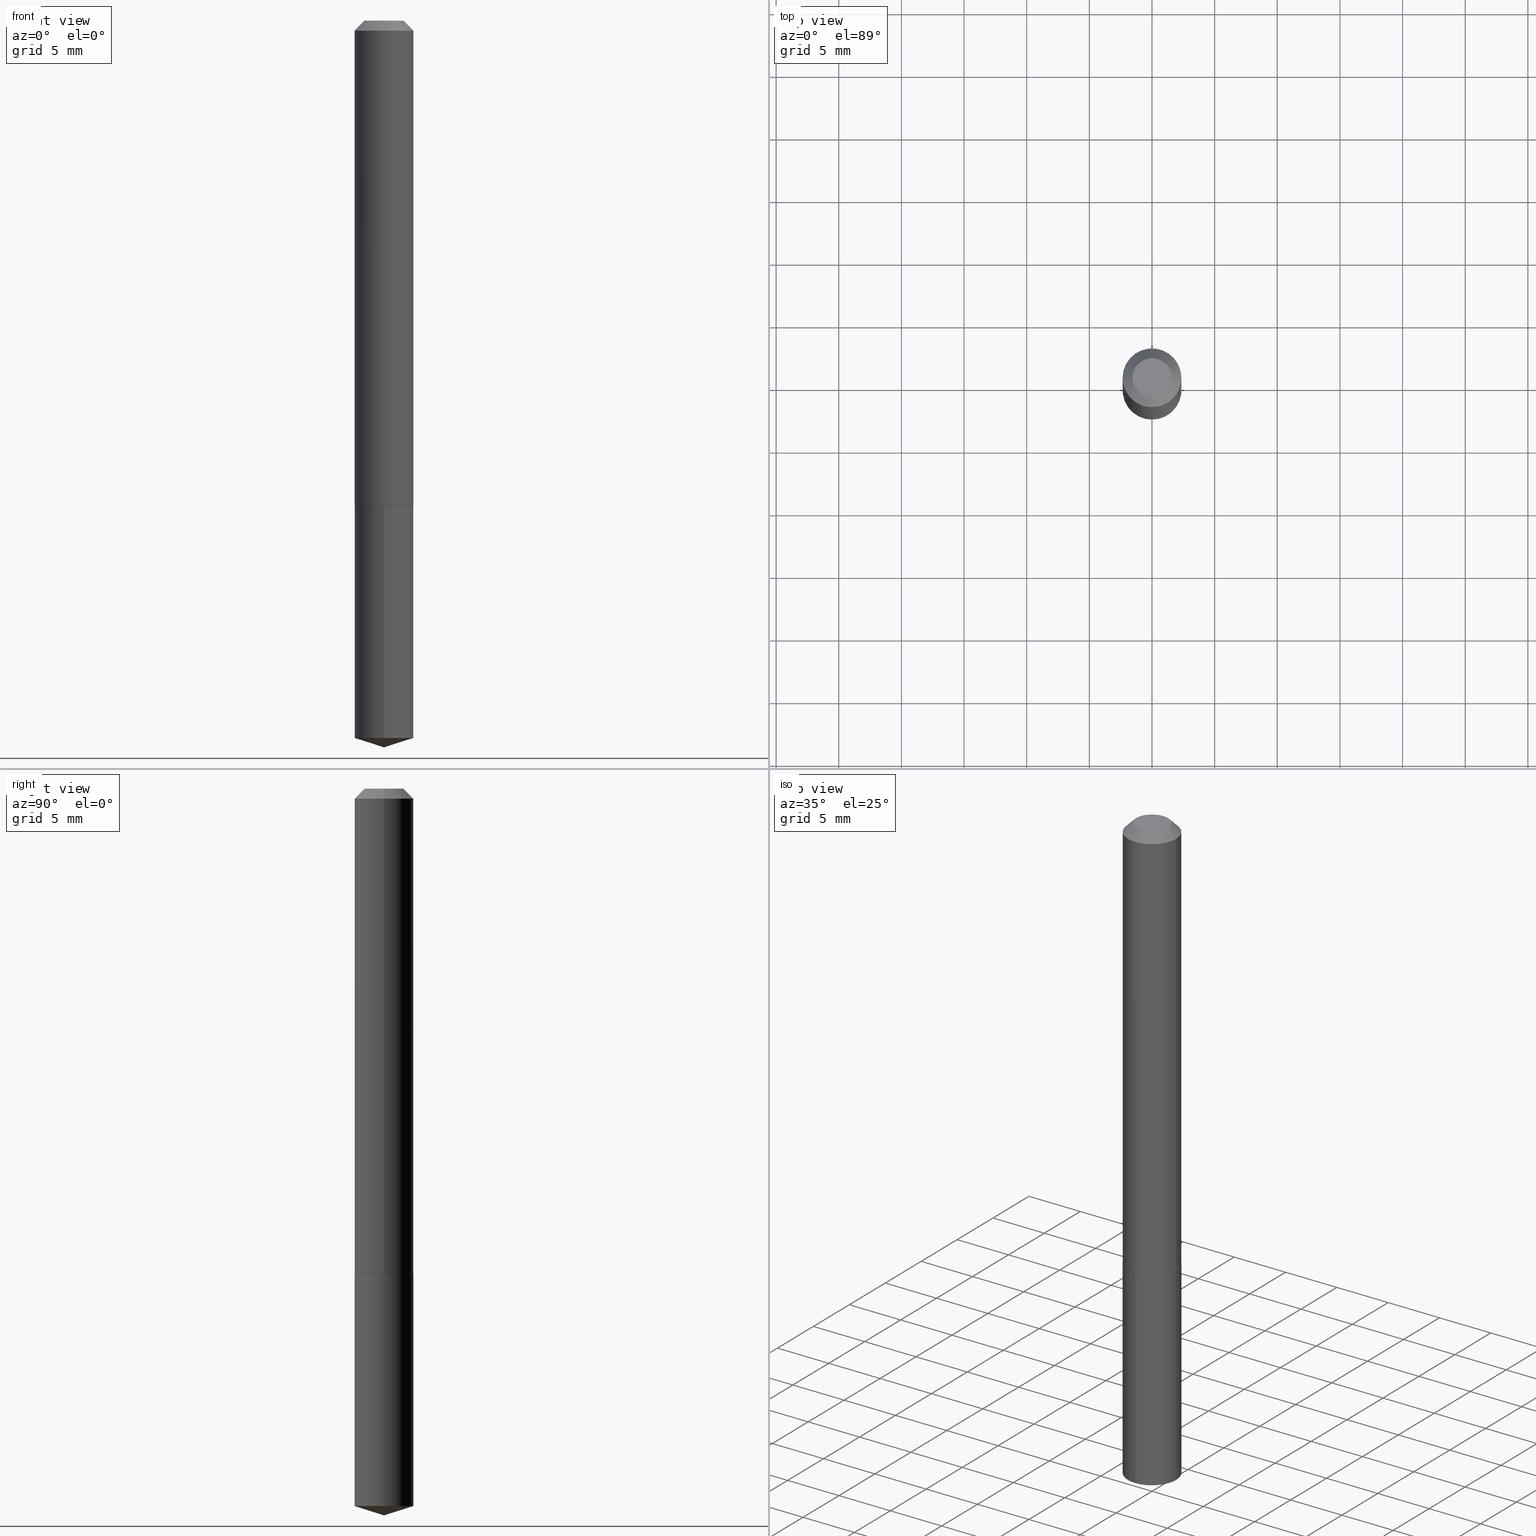
[diagram: canonical four-view strip — front | top / right | iso, engineering-drawing reading convention]
A machine part, canonical four-view strip (front | top / right | iso — engineering-drawing reading convention). The complete STEP part file that produces these views, byte-faithful:
ISO-10303-21;
HEADER;
FILE_DESCRIPTION (( 'STEP AP203' ),
    '1' );
FILE_NAME ('62105.STEP',
    '2024-04-23T06:02:27',
    ( '' ),
    ( '' ),
    'SwSTEP 2.0',
    'SolidWorks 2023',
    '' );
FILE_SCHEMA (( 'CONFIG_CONTROL_DESIGN' ));
ENDSEC;

DATA;
#1 = DIRECTION ( 'NONE',  ( -2.445468806185136597E-29, 3.491481338843145583E-15, 1.000000000000000000 ) ) ;
#2 = DIRECTION ( 'NONE',  ( -0.7071067811865474617, 7.493145998870352582E-15, 0.7071067811865474617 ) ) ;
#3 = AXIS2_PLACEMENT_3D ( 'NONE', #269, #19, #258 ) ;
#4 = AXIS2_PLACEMENT_3D ( 'NONE', #343, #64, #278 ) ;
#5 = DIRECTION ( 'NONE',  ( 1.000000000000000000, -6.982962677686267499E-15, 4.876176775795936353E-29 ) ) ;
#6 = DIRECTION ( 'NONE',  ( -6.982962677686265922E-15, -1.000000000000000000, 2.953349182339743999E-15 ) ) ;
#7 = FACE_OUTER_BOUND ( 'NONE', #244, .T. ) ;
#8 = CIRCLE ( 'NONE', #311, 0.09250000000000002665 ) ;
#9 = CARTESIAN_POINT ( 'NONE',  ( 0.09200000000000027600, -5.962053534208555646E-15, -1.523600000000000065 ) ) ;
#10 = DIRECTION ( 'NONE',  ( -2.432666461366210760E-29, 3.509815025288062434E-15, 1.000000000000000000 ) ) ;
#11 = ORIENTED_EDGE ( 'NONE', *, *, #201, .T. ) ;
#12 = APPLICATION_PROTOCOL_DEFINITION ( 'international standard', 'config_control_design', 1994, #249 ) ;
#13 = LINE ( 'NONE', #382, #203 ) ;
#14 = APPROVAL_STATUS ( 'not_yet_approved' ) ;
#15 = DIRECTION ( 'NONE',  ( 1.000000000000000000, -6.982962677686266711E-15, 0.000000000000000000 ) ) ;
#16 = DIRECTION ( 'NONE',  ( -6.982962677686265133E-15, -1.000000000000000000, 2.953349182339743210E-15 ) ) ;
#17 = ORIENTED_EDGE ( 'NONE', *, *, #334, .T. ) ;
#18 = PRODUCT_DEFINITION_FORMATION_WITH_SPECIFIED_SOURCE ( 'ANY', '', #335, .NOT_KNOWN. ) ;
#19 = DIRECTION ( 'NONE',  ( -2.445468806185136597E-29, 3.491481338843145583E-15, 1.000000000000000000 ) ) ;
#20 = ORIENTED_EDGE ( 'NONE', *, *, #384, .F. ) ;
#21 = ORIENTED_EDGE ( 'NONE', *, *, #79, .T. ) ;
#22 = AXIS2_PLACEMENT_3D ( 'NONE', #188, #354, #314 ) ;
#23 = CC_DESIGN_DATE_AND_TIME_ASSIGNMENT ( #150, #126, ( #276 ) ) ;
#24 = CIRCLE ( 'NONE', #299, 0.09249999999999999889 ) ;
#25 = FACE_OUTER_BOUND ( 'NONE', #155, .T. ) ;
#26 = DIRECTION ( 'NONE',  ( 1.000000000000000000, -6.982962677686269866E-15, 0.000000000000000000 ) ) ;
#27 = DIRECTION ( 'NONE',  ( -2.432666461366210760E-29, 3.509815025288062434E-15, 1.000000000000000000 ) ) ;
#28 = CARTESIAN_POINT ( 'NONE',  ( 3.725916273103674139E-29, -5.319620967861417089E-15, -1.523600000000000065 ) ) ;
#29 = FACE_OUTER_BOUND ( 'NONE', #274, .T. ) ;
#30 = PLANE ( 'NONE',  #208 ) ;
#31 = CONICAL_SURFACE ( 'NONE', #256, 124.8659371009154455, 1.265363707695892570 ) ;
#32 = APPROVAL_PERSON_ORGANIZATION ( #388, #228, #195 ) ;
#33 = ORIENTED_EDGE ( 'NONE', *, *, #74, .T. ) ;
#34 = ORIENTED_EDGE ( 'NONE', *, *, #170, .T. ) ;
#35 = FACE_OUTER_BOUND ( 'NONE', #39, .T. ) ;
#36 = PERSON_AND_ORGANIZATION ( #376, #298 ) ;
#37 = VERTEX_POINT ( 'NONE', #234 ) ;
#38 = DIRECTION ( 'NONE',  ( -2.432666461366210760E-29, 3.509815025288062434E-15, 1.000000000000000000 ) ) ;
#39 = EDGE_LOOP ( 'NONE', ( #387, #255, #383, #34 ) ) ;
#40 = CARTESIAN_POINT ( 'NONE',  ( 3.724693538700582458E-29, -5.317875227191995586E-15, -1.523100000000000120 ) ) ;
#41 = EDGE_LOOP ( 'NONE', ( #75, #352, #211 ) ) ;
#42 = DIRECTION ( 'NONE',  ( -2.445468806185136597E-29, 3.491481338843145583E-15, 1.000000000000000000 ) ) ;
#43 = DIRECTION ( 'NONE',  ( -2.432666461366210760E-29, 3.509815025288062434E-15, 1.000000000000000000 ) ) ;
#44 = DIRECTION ( 'NONE',  ( 0.000000000000000000, 0.000000000000000000, 1.000000000000000000 ) ) ;
#45 = CARTESIAN_POINT ( 'NONE',  ( 3.725916273103674139E-29, -5.319620967861417089E-15, -1.523600000000000065 ) ) ;
#46 = DIRECTION ( 'NONE',  ( -2.432666461366210760E-29, 3.509815025288062434E-15, 1.000000000000000000 ) ) ;
#47 = APPROVAL_STATUS ( 'not_yet_approved' ) ;
#48 = ORIENTED_EDGE ( 'NONE', *, *, #273, .T. ) ;
#49 = CONICAL_SURFACE ( 'NONE', #129, 0.09250000000000017930, 0.7853981633974482790 ) ;
#50 = DIRECTION ( 'NONE',  ( 6.776566513254258926E-15, 0.9537169507482290420, 0.3007057995042663467 ) ) ;
#51 = VERTEX_POINT ( 'NONE', #362 ) ;
#52 = EDGE_CURVE ( 'NONE', #302, #160, #238, .T. ) ;
#53 = CARTESIAN_POINT ( 'NONE',  ( 0.000000000000000000, 0.000000000000000000, 0.000000000000000000 ) ) ;
#54 = DIRECTION ( 'NONE',  ( -2.445468806185136597E-29, 3.491481338843145583E-15, 1.000000000000000000 ) ) ;
#55 = FACE_OUTER_BOUND ( 'NONE', #41, .T. ) ;
#56 = CONICAL_SURFACE ( 'NONE', #216, 124.8659371009154455, 1.265363707695892570 ) ;
#57 = CC_DESIGN_PERSON_AND_ORGANIZATION_ASSIGNMENT ( #133, #71, ( #276 ) ) ;
#58 = ADVANCED_FACE ( 'NONE', ( #25 ), #220, .F. ) ;
#59 = DIRECTION ( 'NONE',  ( -2.432666461366210760E-29, 3.509815025288062434E-15, 1.000000000000000000 ) ) ;
#60 = CC_DESIGN_SECURITY_CLASSIFICATION ( #78, ( #18 ) ) ;
#61 = LINE ( 'NONE', #179, #310 ) ;
#62 = EDGE_CURVE ( 'NONE', #379, #319, #347, .T. ) ;
#63 = DIRECTION ( 'NONE',  ( -1.000000000000000000, 6.982962677686266711E-15, 0.000000000000000000 ) ) ;
#64 = DIRECTION ( 'NONE',  ( -2.445468806185136597E-29, 3.491481338843145583E-15, 1.000000000000000000 ) ) ;
#65 = ORIENTED_EDGE ( 'NONE', *, *, #275, .T. ) ;
#66 = DESIGN_CONTEXT ( 'detailed design', #315, 'design' ) ;
#67 = APPROVAL_ROLE ( '' ) ;
#68 = VECTOR ( 'NONE', #38, 39.37007874015748143 ) ;
#69 = VERTEX_POINT ( 'NONE', #329 ) ;
#70 = EDGE_LOOP ( 'NONE', ( #90, #331 ) ) ;
#71 = PERSON_AND_ORGANIZATION_ROLE ( 'creator' ) ;
#72 = CARTESIAN_POINT ( 'NONE',  ( -5.839929314523210657E-48, 8.337871319499132076E-34, 2.388061258337348585E-19 ) ) ;
#73 = AXIS2_PLACEMENT_3D ( 'NONE', #173, #245, #317 ) ;
#74 = EDGE_CURVE ( 'NONE', #379, #316, #291, .T. ) ;
#75 = ORIENTED_EDGE ( 'NONE', *, *, #119, .F. ) ;
#76 = AXIS2_PLACEMENT_3D ( 'NONE', #72, #135, #190 ) ;
#77 = AXIS2_PLACEMENT_3D ( 'NONE', #327, #101, #217 ) ;
#78 = SECURITY_CLASSIFICATION ( '', '', #318 ) ;
#79 = EDGE_CURVE ( 'NONE', #214, #51, #82, .T. ) ;
#80 = CARTESIAN_POINT ( 'NONE',  ( -0.09250000000000008216, 6.572520305780932557E-16, -4.550014958485792374E-30 ) ) ;
#81 = CARTESIAN_POINT ( 'NONE',  ( -0.09249999999999999889, -2.056239978937328693E-15, -0.03125000000000020123 ) ) ;
#82 = CIRCLE ( 'NONE', #215, 0.09249999999999999889 ) ;
#83 = CIRCLE ( 'NONE', #22, 0.09200000000000027600 ) ;
#84 = CYLINDRICAL_SURFACE ( 'NONE', #73, 0.09249999999999999889 ) ;
#85 = CARTESIAN_POINT ( 'NONE',  ( 0.06125000000000000583, -5.819551794981109879E-16, 2.388061258372646066E-19 ) ) ;
#86 = DIRECTION ( 'NONE',  ( 2.432666461366210480E-29, -3.509815025288062434E-15, -1.000000000000000000 ) ) ;
#87 = PRODUCT_RELATED_PRODUCT_CATEGORY ( 'detail', '', ( #335 ) ) ;
#88 = FACE_OUTER_BOUND ( 'NONE', #265, .T. ) ;
#89 = CARTESIAN_POINT ( 'NONE',  ( -0.09250000000000017930, -4.660623196613901936E-15, -1.523100000000000120 ) ) ;
#90 = ORIENTED_EDGE ( 'NONE', *, *, #194, .F. ) ;
#91 = DIRECTION ( 'NONE',  ( 2.445468806185136597E-29, -3.491481338843145583E-15, -1.000000000000000000 ) ) ;
#92 = EDGE_CURVE ( 'NONE', #325, #69, #287, .T. ) ;
#93 = LOCAL_TIME ( 2, 2, 27.00000000000000000, #154 ) ;
#94 = CALENDAR_DATE ( 2024, 23, 4 ) ;
#95 = ORIENTED_EDGE ( 'NONE', *, *, #131, .T. ) ;
#96 = CARTESIAN_POINT ( 'NONE',  ( 3.724693538700582458E-29, -5.317875227191995586E-15, -1.523100000000000120 ) ) ;
#97 = CARTESIAN_POINT ( 'NONE',  ( -6.459240476859423182E-16, -0.09250000000000532796, -1.523599999999999843 ) ) ;
#98 = PERSON_AND_ORGANIZATION ( #376, #298 ) ;
#99 = LINE ( 'NONE', #158, #111 ) ;
#100 = CALENDAR_DATE ( 2024, 23, 4 ) ;
#101 = DIRECTION ( 'NONE',  ( 2.445468806185136597E-29, -3.491481338843145583E-15, -1.000000000000000000 ) ) ;
#102 = PERSON_AND_ORGANIZATION ( #376, #298 ) ;
#103 = APPLICATION_PROTOCOL_DEFINITION ( 'international standard', 'config_control_design', 1994, #315 ) ;
#104 = ORIENTED_EDGE ( 'NONE', *, *, #168, .T. ) ;
#105 = DIRECTION ( 'NONE',  ( 1.000000000000000000, -6.982962677686272233E-15, 0.000000000000000000 ) ) ;
#106 = ORIENTED_EDGE ( 'NONE', *, *, #52, .T. ) ;
#107 = MANIFOLD_SOLID_BREP ( 'Body-Move/Copy2[2]', #202 ) ;
#108 = SHAPE_DEFINITION_REPRESENTATION ( #147, #390 ) ;
#109 = DIRECTION ( 'NONE',  ( 2.438088387897960049E-29, -3.491481338843145188E-15, -1.000000000000000000 ) ) ;
#110 = AXIS2_PLACEMENT_3D ( 'NONE', #323, #46, #281 ) ;
#111 = VECTOR ( 'NONE', #149, 39.37007874015748143 ) ;
#112 = CARTESIAN_POINT ( 'NONE',  ( -9.019977061543212716E-28, 1.301949645034010359E-13, 37.08657874015747780 ) ) ;
#113 = ORIENTED_EDGE ( 'NONE', *, *, #334, .F. ) ;
#114 = ADVANCED_FACE ( 'NONE', ( #193 ), #200, .T. ) ;
#115 = DIRECTION ( 'NONE',  ( -6.659769872151635244E-15, -0.9537169507482269326, 0.3007057995042730081 ) ) ;
#116 = CARTESIAN_POINT ( 'NONE',  ( 6.572520305781298391E-16, 0.09249999999999466982, -1.523600000000000287 ) ) ;
#117 = APPROVAL_PERSON_ORGANIZATION ( #285, #192, #322 ) ;
#118 = VECTOR ( 'NONE', #351, 39.37007874015748143 ) ;
#119 = EDGE_CURVE ( 'NONE', #325, #184, #169, .T. ) ;
#120 = DIRECTION ( 'NONE',  ( -6.982962677686265922E-15, -1.000000000000000000, 2.953349182339743999E-15 ) ) ;
#121 = ORIENTED_EDGE ( 'NONE', *, *, #199, .F. ) ;
#122 = FACE_OUTER_BOUND ( 'NONE', #130, .T. ) ;
#123 = AXIS2_PLACEMENT_3D ( 'NONE', #337, #91, #63 ) ;
#124 = EDGE_CURVE ( 'NONE', #160, #316, #61, .T. ) ;
#125 = COORDINATED_UNIVERSAL_TIME_OFFSET ( 5, 0, .BEHIND. ) ;
#126 = DATE_TIME_ROLE ( 'creation_date' ) ;
#127 = ORIENTED_EDGE ( 'NONE', *, *, #223, .T. ) ;
#128 = CIRCLE ( 'NONE', #360, 0.09200000000000027600 ) ;
#129 = AXIS2_PLACEMENT_3D ( 'NONE', #40, #226, #105 ) ;
#130 = EDGE_LOOP ( 'NONE', ( #20, #127, #11, #113 ) ) ;
#131 = EDGE_CURVE ( 'NONE', #283, #134, #128, .T. ) ;
#132 = CARTESIAN_POINT ( 'NONE',  ( 5.503550464111944326E-29, -7.884365166111527938E-15, -2.254334862028694708 ) ) ;
#133 = PERSON_AND_ORGANIZATION ( #376, #298 ) ;
#134 = VERTEX_POINT ( 'NONE', #9 ) ;
#135 = DIRECTION ( 'NONE',  ( -2.445468806185136597E-29, 3.491481338843145583E-15, 1.000000000000000000 ) ) ;
#136 = ORIENTED_EDGE ( 'NONE', *, *, #273, .F. ) ;
#137 = DATE_AND_TIME ( #227, #349 ) ;
#138 = DIRECTION ( 'NONE',  ( -1.000000000000000000, 6.982962677686265922E-15, -4.876176775795935793E-29 ) ) ;
#139 = LINE ( 'NONE', #89, #336 ) ;
#140 = CC_DESIGN_PERSON_AND_ORGANIZATION_ASSIGNMENT ( #98, #279, ( #18 ) ) ;
#141 = DIRECTION ( 'NONE',  ( -6.982962677686265922E-15, -1.000000000000000000, 2.953349182339743999E-15 ) ) ;
#142 = VECTOR ( 'NONE', #115, 39.37007874015748143 ) ;
#143 = AXIS2_PLACEMENT_3D ( 'NONE', #375, #42, #15 ) ;
#144 = DIRECTION ( 'NONE',  ( -2.445468806185136597E-29, 3.491481338843145583E-15, 1.000000000000000000 ) ) ;
#145 = ADVANCED_FACE ( 'NONE', ( #308 ), #242, .F. ) ;
#146 = ORIENTED_EDGE ( 'NONE', *, *, #199, .T. ) ;
#147 = PRODUCT_DEFINITION_SHAPE ( 'NONE', 'NONE',  #276 ) ;
#148 = ORIENTED_EDGE ( 'NONE', *, *, #62, .F. ) ;
#149 = DIRECTION ( 'NONE',  ( -2.445468806185136877E-29, 3.491481338843145188E-15, 1.000000000000000000 ) ) ;
#150 = DATE_AND_TIME ( #94, #178 ) ;
#151 = ORIENTED_EDGE ( 'NONE', *, *, #119, .T. ) ;
#152 = EDGE_CURVE ( 'NONE', #160, #302, #288, .T. ) ;
#153 = LINE ( 'NONE', #209, #118 ) ;
#154 = COORDINATED_UNIVERSAL_TIME_OFFSET ( 5, 0, .BEHIND. ) ;
#155 = EDGE_LOOP ( 'NONE', ( #182, #106 ) ) ;
#156 = EDGE_LOOP ( 'NONE', ( #21, #17 ) ) ;
#157 = UNCERTAINTY_MEASURE_WITH_UNIT (LENGTH_MEASURE( 1.000000000000000082E-05 ), #235, 'distance_accuracy_value', 'NONE');
#158 = CARTESIAN_POINT ( 'NONE',  ( 0.09250000000000008216, -6.459240476859802821E-16, 4.510463517611244952E-30 ) ) ;
#159 = COORDINATED_UNIVERSAL_TIME_OFFSET ( 5, 0, .BEHIND. ) ;
#160 = VERTEX_POINT ( 'NONE', #280 ) ;
#161 = DIRECTION ( 'NONE',  ( 1.000000000000000000, -6.982962677686267499E-15, 4.876176775795936353E-29 ) ) ;
#162 = APPROVAL_STATUS ( 'not_yet_approved' ) ;
#163 = ORIENTED_EDGE ( 'NONE', *, *, #52, .F. ) ;
#164 = VECTOR ( 'NONE', #222, 39.37007874015748143 ) ;
#165 = APPROVAL_DATE_TIME ( #137, #228 ) ;
#166 = CONICAL_SURFACE ( 'NONE', #77, 0.09249999999999999889, 0.7853981633974450594 ) ;
#167 = CARTESIAN_POINT ( 'NONE',  ( -0.09200000000000027600, -4.663272423788011559E-15, -1.523600000000000065 ) ) ;
#168 = EDGE_CURVE ( 'NONE', #319, #379, #207, .T. ) ;
#169 = LINE ( 'NONE', #294, #142 ) ;
#170 = EDGE_CURVE ( 'NONE', #316, #37, #332, .T. ) ;
#171 = VECTOR ( 'NONE', #240, 39.37007874015748143 ) ;
#172 = DIRECTION ( 'NONE',  ( -2.438088387897960049E-29, 3.491481338843145188E-15, 1.000000000000000000 ) ) ;
#173 = CARTESIAN_POINT ( 'NONE',  ( 3.725916273103674139E-29, -5.319620967861417089E-15, -1.523600000000000065 ) ) ;
#174 = CYLINDRICAL_SURFACE ( 'NONE', #341, 0.09250000000000008216 ) ;
#175 = FACE_OUTER_BOUND ( 'NONE', #206, .T. ) ;
#176 = ORIENTED_EDGE ( 'NONE', *, *, #275, .F. ) ;
#177 = AXIS2_PLACEMENT_3D ( 'NONE', #365, #86, #205 ) ;
#178 = LOCAL_TIME ( 2, 2, 27.00000000000000000, #189 ) ;
#179 = CARTESIAN_POINT ( 'NONE',  ( -0.09249999999999999889, 5.368152558471306884E-16, -0.03125000000000020123 ) ) ;
#180 = ORIENTED_EDGE ( 'NONE', *, *, #170, .F. ) ;
#181 = APPROVAL_DATE_TIME ( #344, #237 ) ;
#182 = ORIENTED_EDGE ( 'NONE', *, *, #152, .T. ) ;
#183 = CYLINDRICAL_SURFACE ( 'NONE', #268, 0.09249999999999999889 ) ;
#184 = VERTEX_POINT ( 'NONE', #219 ) ;
#185 = DATE_AND_TIME ( #374, #381 ) ;
#186 = DIMENSIONAL_EXPONENTS ( 1.000000000000000000, 0.000000000000000000, 0.000000000000000000, 0.000000000000000000, 0.000000000000000000, 0.000000000000000000, 0.000000000000000000 ) ;
#187 = ORIENTED_EDGE ( 'NONE', *, *, #79, .F. ) ;
#188 = CARTESIAN_POINT ( 'NONE',  ( 3.725916273103674139E-29, -5.319620967861417089E-15, -1.523600000000000065 ) ) ;
#189 = COORDINATED_UNIVERSAL_TIME_OFFSET ( 5, 0, .BEHIND. ) ;
#190 = DIRECTION ( 'NONE',  ( 1.000000000000000000, -6.982962677686267499E-15, 4.876190086226892022E-29 ) ) ;
#191 = EDGE_LOOP ( 'NONE', ( #261, #342, #359, #180 ) ) ;
#192 = APPROVAL ( #14, 'UNSPECIFIED' ) ;
#193 = FACE_OUTER_BOUND ( 'NONE', #296, .T. ) ;
#194 = EDGE_CURVE ( 'NONE', #134, #283, #83, .T. ) ;
#195 = APPROVAL_ROLE ( '' ) ;
#196 = VECTOR ( 'NONE', #50, 39.37007874015748143 ) ;
#197 =( GEOMETRIC_REPRESENTATION_CONTEXT ( 3 ) GLOBAL_UNCERTAINTY_ASSIGNED_CONTEXT ( ( #157 ) ) GLOBAL_UNIT_ASSIGNED_CONTEXT ( ( #235, #259, #378 ) ) REPRESENTATION_CONTEXT ( 'NONE', 'WORKASPACE' ) );
#198 = CC_DESIGN_APPROVAL ( #237, ( #18 ) ) ;
#199 = EDGE_CURVE ( 'NONE', #134, #319, #13, .T. ) ;
#200 = CYLINDRICAL_SURFACE ( 'NONE', #230, 0.09250000000000008216 ) ;
#201 = EDGE_CURVE ( 'NONE', #184, #214, #284, .T. ) ;
#202 = CLOSED_SHELL ( 'NONE', ( #328, #114, #321, #295, #264, #292, #218, #58 ) ) ;
#203 = VECTOR ( 'NONE', #371, 39.37007874015748854 ) ;
#204 = DIRECTION ( 'NONE',  ( -2.432666461366210760E-29, 3.509815025288062434E-15, 1.000000000000000000 ) ) ;
#205 = DIRECTION ( 'NONE',  ( 6.982962677686265922E-15, 1.000000000000000000, -3.509815025288062434E-15 ) ) ;
#206 = EDGE_LOOP ( 'NONE', ( #313, #151, #252 ) ) ;
#207 = CIRCLE ( 'NONE', #250, 0.09250000000000017930 ) ;
#208 = AXIS2_PLACEMENT_3D ( 'NONE', #300, #172, #306 ) ;
#209 = CARTESIAN_POINT ( 'NONE',  ( 0.09249999999999999889, -7.437048566327157189E-16, -0.03125000000000020123 ) ) ;
#210 = CALENDAR_DATE ( 2024, 23, 4 ) ;
#211 = ORIENTED_EDGE ( 'NONE', *, *, #246, .F. ) ;
#212 = DIRECTION ( 'NONE',  ( -2.445468806185136597E-29, 3.491481338843145583E-15, 1.000000000000000000 ) ) ;
#213 = CARTESIAN_POINT ( 'NONE',  ( 3.725916273103674139E-29, -5.319620967861417089E-15, -1.523600000000000065 ) ) ;
#214 = VERTEX_POINT ( 'NONE', #254 ) ;
#215 = AXIS2_PLACEMENT_3D ( 'NONE', #45, #358, #6 ) ;
#216 = AXIS2_PLACEMENT_3D ( 'NONE', #301, #204, #267 ) ;
#217 = DIRECTION ( 'NONE',  ( -1.000000000000000000, 6.982962677686266711E-15, 0.000000000000000000 ) ) ;
#218 = ADVANCED_FACE ( 'NONE', ( #35 ), #166, .T. ) ;
#219 = CARTESIAN_POINT ( 'NONE',  ( -6.459240476859246674E-16, -0.09250000000000789535, -2.254334862028694264 ) ) ;
#220 = PLANE ( 'NONE',  #297 ) ;
#221 = EDGE_CURVE ( 'NONE', #302, #37, #153, .T. ) ;
#222 = DIRECTION ( 'NONE',  ( -2.445468806185136877E-29, 3.491481338843145188E-15, 1.000000000000000000 ) ) ;
#223 = EDGE_CURVE ( 'NONE', #69, #184, #289, .T. ) ;
#224 = CARTESIAN_POINT ( 'NONE',  ( 5.594347252758832893E-29, -7.958796200910339731E-15, -2.283500000000000085 ) ) ;
#225 =( LENGTH_UNIT ( ) NAMED_UNIT ( * ) SI_UNIT ( $, .METRE. ) );
#226 = DIRECTION ( 'NONE',  ( -2.445468806185136597E-29, 3.491481338843145583E-15, 1.000000000000000000 ) ) ;
#227 = CALENDAR_DATE ( 2024, 23, 4 ) ;
#228 = APPROVAL ( #162, 'UNSPECIFIED' ) ;
#229 = EDGE_CURVE ( 'NONE', #319, #37, #99, .T. ) ;
#230 = AXIS2_PLACEMENT_3D ( 'NONE', #333, #54, #161 ) ;
#231 = APPROVAL_PERSON_ORGANIZATION ( #346, #237, #67 ) ;
#232 = CARTESIAN_POINT ( 'NONE',  ( 7.642090019328600035E-31, -1.091087918388489897E-16, -0.03125000000000020123 ) ) ;
#233 = ORIENTED_EDGE ( 'NONE', *, *, #384, .T. ) ;
#234 = CARTESIAN_POINT ( 'NONE',  ( 0.09249999999999999889, -7.550328395248286925E-16, -0.03125000000000020123 ) ) ;
#235 =( CONVERSION_BASED_UNIT ( 'INCH', #247 ) LENGTH_UNIT ( ) NAMED_UNIT ( #186 ) );
#236 = CARTESIAN_POINT ( 'NONE',  ( 0.09250000000000017930, -5.963799274877977150E-15, -1.523100000000000120 ) ) ;
#237 = APPROVAL ( #47, 'UNSPECIFIED' ) ;
#238 = CIRCLE ( 'NONE', #76, 0.06125000000000000583 ) ;
#239 = AXIS2_PLACEMENT_3D ( 'NONE', #324, #44, #286 ) ;
#240 = DIRECTION ( 'NONE',  ( -2.432666461366210760E-29, 3.509815025288062434E-15, 1.000000000000000000 ) ) ;
#241 = FACE_OUTER_BOUND ( 'NONE', #191, .T. ) ;
#242 = PLANE ( 'NONE',  #177 ) ;
#243 = CARTESIAN_POINT ( 'NONE',  ( 5.554993864529742461E-29, -8.014662610245290263E-15, -2.283500000000000085 ) ) ;
#244 = EDGE_LOOP ( 'NONE', ( #248, #65, #260, #121 ) ) ;
#245 = DIRECTION ( 'NONE',  ( -2.432666461366210760E-29, 3.509815025288062434E-15, 1.000000000000000000 ) ) ;
#246 = EDGE_CURVE ( 'NONE', #184, #69, #8, .T. ) ;
#247 = LENGTH_MEASURE_WITH_UNIT ( LENGTH_MEASURE( 0.02539999999999999897 ), #225 );
#248 = ORIENTED_EDGE ( 'NONE', *, *, #194, .T. ) ;
#249 = APPLICATION_CONTEXT ( 'configuration controlled 3d designs of mechanical parts and assemblies' ) ;
#250 = AXIS2_PLACEMENT_3D ( 'NONE', #96, #212, #320 ) ;
#251 = MECHANICAL_CONTEXT ( 'NONE', #249, 'mechanical' ) ;
#252 = ORIENTED_EDGE ( 'NONE', *, *, #223, .F. ) ;
#253 = PERSON_AND_ORGANIZATION ( #376, #298 ) ;
#254 = CARTESIAN_POINT ( 'NONE',  ( -6.459240476859423182E-16, -0.09250000000000532796, -1.523599999999999843 ) ) ;
#255 = ORIENTED_EDGE ( 'NONE', *, *, #152, .F. ) ;
#256 = AXIS2_PLACEMENT_3D ( 'NONE', #112, #27, #363 ) ;
#257 = LOCAL_TIME ( 2, 2, 27.00000000000000000, #159 ) ;
#258 = DIRECTION ( 'NONE',  ( 1.000000000000000000, -6.982962677686272233E-15, 0.000000000000000000 ) ) ;
#259 =( NAMED_UNIT ( * ) PLANE_ANGLE_UNIT ( ) SI_UNIT ( $, .RADIAN. ) );
#260 = ORIENTED_EDGE ( 'NONE', *, *, #168, .F. ) ;
#261 = ORIENTED_EDGE ( 'NONE', *, *, #74, .F. ) ;
#262 = DIRECTION ( 'NONE',  ( 1.000000000000000000, -6.982962677686267499E-15, 4.876190086226892022E-29 ) ) ;
#263 = CLOSED_SHELL ( 'NONE', ( #353, #309, #266, #357, #145 ) ) ;
#264 = ADVANCED_FACE ( 'NONE', ( #385 ), #380, .T. ) ;
#265 = EDGE_LOOP ( 'NONE', ( #163, #389, #48, #367 ) ) ;
#266 = ADVANCED_FACE ( 'NONE', ( #175 ), #56, .T. ) ;
#267 = DIRECTION ( 'NONE',  ( -6.982962677686268288E-15, -1.000000000000000000, 3.500519750498693782E-15 ) ) ;
#268 = AXIS2_PLACEMENT_3D ( 'NONE', #305, #10, #141 ) ;
#269 = CARTESIAN_POINT ( 'NONE',  ( 3.724693538700582458E-29, -5.317875227191995586E-15, -1.523100000000000120 ) ) ;
#270 = CC_DESIGN_PERSON_AND_ORGANIZATION_ASSIGNMENT ( #102, #290, ( #335 ) ) ;
#271 = DIRECTION ( 'NONE',  ( 1.000000000000000000, -6.982962677686266711E-15, 0.000000000000000000 ) ) ;
#272 = CARTESIAN_POINT ( 'NONE',  ( -0.09250000000000017930, -4.660623196613901936E-15, -1.523100000000000120 ) ) ;
#273 = EDGE_CURVE ( 'NONE', #37, #316, #24, .T. ) ;
#274 = EDGE_LOOP ( 'NONE', ( #277, #233, #187, #373 ) ) ;
#275 = EDGE_CURVE ( 'NONE', #283, #379, #139, .T. ) ;
#276 = PRODUCT_DEFINITION ( 'UNKNOWN', '', #18, #66 ) ;
#277 = ORIENTED_EDGE ( 'NONE', *, *, #246, .T. ) ;
#278 = DIRECTION ( 'NONE',  ( 1.000000000000000000, -6.982962677686272233E-15, 0.000000000000000000 ) ) ;
#279 = PERSON_AND_ORGANIZATION_ROLE ( 'creator' ) ;
#280 = CARTESIAN_POINT ( 'NONE',  ( -0.06125000000000000583, 4.822608599277073214E-16, 2.388061258305531741E-19 ) ) ;
#281 = DIRECTION ( 'NONE',  ( -6.982962677686265133E-15, -1.000000000000000000, 2.953349182339743210E-15 ) ) ;
#282 = PERSON_AND_ORGANIZATION_ROLE ( 'classification_officer' ) ;
#283 = VERTEX_POINT ( 'NONE', #167 ) ;
#284 = LINE ( 'NONE', #97, #68 ) ;
#285 = PERSON_AND_ORGANIZATION ( #376, #298 ) ;
#286 = DIRECTION ( 'NONE',  ( 1.000000000000000000, 0.000000000000000000, 0.000000000000000000 ) ) ;
#287 = LINE ( 'NONE', #224, #196 ) ;
#288 = CIRCLE ( 'NONE', #340, 0.06125000000000000583 ) ;
#289 = CIRCLE ( 'NONE', #110, 0.09250000000000002665 ) ;
#290 = PERSON_AND_ORGANIZATION_ROLE ( 'design_owner' ) ;
#291 = LINE ( 'NONE', #80, #164 ) ;
#292 = ADVANCED_FACE ( 'NONE', ( #241 ), #174, .T. ) ;
#293 = COORDINATED_UNIVERSAL_TIME_OFFSET ( 5, 0, .BEHIND. ) ;
#294 = CARTESIAN_POINT ( 'NONE',  ( 5.554993864529742461E-29, -8.014662610245290263E-15, -2.283500000000000085 ) ) ;
#295 = ADVANCED_FACE ( 'NONE', ( #339 ), #30, .F. ) ;
#296 = EDGE_LOOP ( 'NONE', ( #104, #33, #136, #370 ) ) ;
#297 = AXIS2_PLACEMENT_3D ( 'NONE', #330, #109, #138 ) ;
#298 = ORGANIZATION ( 'UNSPECIFIED', 'UNSPECIFIED', '' ) ;
#299 = AXIS2_PLACEMENT_3D ( 'NONE', #232, #304, #271 ) ;
#300 = CARTESIAN_POINT ( 'NONE',  ( 3.725916273103674139E-29, -5.319620967861417089E-15, -1.523600000000000065 ) ) ;
#301 = CARTESIAN_POINT ( 'NONE',  ( -9.019977061543212716E-28, 1.301949645034010359E-13, 37.08657874015747780 ) ) ;
#302 = VERTEX_POINT ( 'NONE', #85 ) ;
#303 = CONICAL_SURFACE ( 'NONE', #123, 0.09249999999999999889, 0.7853981633974450594 ) ;
#304 = DIRECTION ( 'NONE',  ( -2.445468806185136597E-29, 3.491481338843145583E-15, 1.000000000000000000 ) ) ;
#305 = CARTESIAN_POINT ( 'NONE',  ( 3.725916273103674139E-29, -5.319620967861417089E-15, -1.523600000000000065 ) ) ;
#306 = DIRECTION ( 'NONE',  ( 1.000000000000000000, -6.982962677686265922E-15, 4.876176775795935793E-29 ) ) ;
#307 = DIRECTION ( 'NONE',  ( -0.7071067811865452413, 2.468850131082233000E-15, -0.7071067811865497932 ) ) ;
#308 = FACE_OUTER_BOUND ( 'NONE', #156, .T. ) ;
#309 = ADVANCED_FACE ( 'NONE', ( #55 ), #31, .T. ) ;
#310 = VECTOR ( 'NONE', #307, 39.37007874015748143 ) ;
#311 = AXIS2_PLACEMENT_3D ( 'NONE', #132, #43, #16 ) ;
#312 = CC_DESIGN_APPROVAL ( #228, ( #78 ) ) ;
#313 = ORIENTED_EDGE ( 'NONE', *, *, #92, .F. ) ;
#314 = DIRECTION ( 'NONE',  ( 1.000000000000000000, -6.982962677686269866E-15, 0.000000000000000000 ) ) ;
#315 = APPLICATION_CONTEXT ( 'configuration controlled 3d designs of mechanical parts and assemblies' ) ;
#316 = VERTEX_POINT ( 'NONE', #81 ) ;
#317 = DIRECTION ( 'NONE',  ( -6.982962677686265922E-15, -1.000000000000000000, 2.953349182339743999E-15 ) ) ;
#318 = SECURITY_CLASSIFICATION_LEVEL ( 'unclassified' ) ;
#319 = VERTEX_POINT ( 'NONE', #236 ) ;
#320 = DIRECTION ( 'NONE',  ( 1.000000000000000000, -6.982962677686272233E-15, 0.000000000000000000 ) ) ;
#321 = ADVANCED_FACE ( 'NONE', ( #7 ), #49, .T. ) ;
#322 = APPROVAL_ROLE ( '' ) ;
#323 = CARTESIAN_POINT ( 'NONE',  ( 5.503550464111944326E-29, -7.884365166111527938E-15, -2.254334862028694708 ) ) ;
#324 = CARTESIAN_POINT ( 'NONE',  ( 0.000000000000000000, 0.000000000000000000, 0.000000000000000000 ) ) ;
#325 = VERTEX_POINT ( 'NONE', #243 ) ;
#326 = CC_DESIGN_DATE_AND_TIME_ASSIGNMENT ( #185, #386, ( #78 ) ) ;
#327 = CARTESIAN_POINT ( 'NONE',  ( 7.642090019328600035E-31, -1.091087918388489897E-16, -0.03125000000000020123 ) ) ;
#328 = ADVANCED_FACE ( 'NONE', ( #88 ), #303, .T. ) ;
#329 = CARTESIAN_POINT ( 'NONE',  ( 6.572520305781476871E-16, 0.09249999999999213018, -2.254334862028694708 ) ) ;
#330 = CARTESIAN_POINT ( 'NONE',  ( -2.919964657261605329E-48, 4.168935659749566038E-34, 1.194030629168674292E-19 ) ) ;
#331 = ORIENTED_EDGE ( 'NONE', *, *, #131, .F. ) ;
#332 = CIRCLE ( 'NONE', #143, 0.09249999999999999889 ) ;
#333 = CARTESIAN_POINT ( 'NONE',  ( 0.000000000000000000, 0.000000000000000000, 0.000000000000000000 ) ) ;
#334 = EDGE_CURVE ( 'NONE', #51, #214, #369, .T. ) ;
#335 = PRODUCT ( '62105', '62105', '', ( #251 ) ) ;
#336 = VECTOR ( 'NONE', #2, 39.37007874015748854 ) ;
#337 = CARTESIAN_POINT ( 'NONE',  ( 7.642090019328600035E-31, -1.091087918388489897E-16, -0.03125000000000020123 ) ) ;
#338 = CC_DESIGN_PERSON_AND_ORGANIZATION_ASSIGNMENT ( #36, #345, ( #18 ) ) ;
#339 = FACE_OUTER_BOUND ( 'NONE', #70, .T. ) ;
#340 = AXIS2_PLACEMENT_3D ( 'NONE', #350, #1, #262 ) ;
#341 = AXIS2_PLACEMENT_3D ( 'NONE', #53, #364, #5 ) ;
#342 = ORIENTED_EDGE ( 'NONE', *, *, #62, .T. ) ;
#343 = CARTESIAN_POINT ( 'NONE',  ( 3.724693538700582458E-29, -5.317875227191995586E-15, -1.523100000000000120 ) ) ;
#344 = DATE_AND_TIME ( #210, #257 ) ;
#345 = PERSON_AND_ORGANIZATION_ROLE ( 'design_supplier' ) ;
#346 = PERSON_AND_ORGANIZATION ( #376, #298 ) ;
#347 = CIRCLE ( 'NONE', #3, 0.09250000000000017930 ) ;
#348 = CC_DESIGN_APPROVAL ( #192, ( #276 ) ) ;
#349 = LOCAL_TIME ( 2, 2, 27.00000000000000000, #293 ) ;
#350 = CARTESIAN_POINT ( 'NONE',  ( -5.839929314523210657E-48, 8.337871319499132076E-34, 2.388061258337348585E-19 ) ) ;
#351 = DIRECTION ( 'NONE',  ( 0.7071067811865452413, -7.319954787623248157E-15, -0.7071067811865497932 ) ) ;
#352 = ORIENTED_EDGE ( 'NONE', *, *, #92, .T. ) ;
#353 = ADVANCED_FACE ( 'NONE', ( #29 ), #84, .T. ) ;
#354 = DIRECTION ( 'NONE',  ( -2.445468806185136597E-29, 3.491481338843145583E-15, 1.000000000000000000 ) ) ;
#355 = DATE_AND_TIME ( #100, #93 ) ;
#356 = EDGE_LOOP ( 'NONE', ( #176, #95, #146, #148 ) ) ;
#357 = ADVANCED_FACE ( 'NONE', ( #122 ), #183, .T. ) ;
#358 = DIRECTION ( 'NONE',  ( -2.432666461366210760E-29, 3.509815025288062434E-15, 1.000000000000000000 ) ) ;
#359 = ORIENTED_EDGE ( 'NONE', *, *, #229, .T. ) ;
#360 = AXIS2_PLACEMENT_3D ( 'NONE', #28, #144, #26 ) ;
#361 = AXIS2_PLACEMENT_3D ( 'NONE', #213, #59, #120 ) ;
#362 = CARTESIAN_POINT ( 'NONE',  ( 6.572520305781478843E-16, 0.09249999999999466982, -1.523600000000000287 ) ) ;
#363 = DIRECTION ( 'NONE',  ( -6.982962677686268288E-15, -1.000000000000000000, 3.500519750498693782E-15 ) ) ;
#364 = DIRECTION ( 'NONE',  ( -2.445468806185136597E-29, 3.491481338843145583E-15, 1.000000000000000000 ) ) ;
#365 = CARTESIAN_POINT ( 'NONE',  ( 3.725916273103674139E-29, -5.319620967861417089E-15, -1.523600000000000065 ) ) ;
#366 = MANIFOLD_SOLID_BREP ( 'Body-Move/Copy2[1]', #263 ) ;
#367 = ORIENTED_EDGE ( 'NONE', *, *, #124, .F. ) ;
#368 = LINE ( 'NONE', #116, #171 ) ;
#369 = CIRCLE ( 'NONE', #361, 0.09249999999999999889 ) ;
#370 = ORIENTED_EDGE ( 'NONE', *, *, #229, .F. ) ;
#371 = DIRECTION ( 'NONE',  ( 0.7071067811865474617, -2.468850131082256666E-15, 0.7071067811865474617 ) ) ;
#372 = APPROVAL_DATE_TIME ( #355, #192 ) ;
#373 = ORIENTED_EDGE ( 'NONE', *, *, #201, .F. ) ;
#374 = CALENDAR_DATE ( 2024, 23, 4 ) ;
#375 = CARTESIAN_POINT ( 'NONE',  ( 7.642090019328600035E-31, -1.091087918388489897E-16, -0.03125000000000020123 ) ) ;
#376 = PERSON ( 'UNSPECIFIED', 'UNSPECIFIED', 'UNSPECIFIED', ('UNSPECIFIED'), ('UNSPECIFIED'), ('UNSPECIFIED') ) ;
#377 = CC_DESIGN_PERSON_AND_ORGANIZATION_ASSIGNMENT ( #253, #282, ( #78 ) ) ;
#378 =( NAMED_UNIT ( * ) SI_UNIT ( $, .STERADIAN. ) SOLID_ANGLE_UNIT ( ) );
#379 = VERTEX_POINT ( 'NONE', #272 ) ;
#380 = CONICAL_SURFACE ( 'NONE', #4, 0.09250000000000017930, 0.7853981633974482790 ) ;
#381 = LOCAL_TIME ( 2, 2, 27.00000000000000000, #125 ) ;
#382 = CARTESIAN_POINT ( 'NONE',  ( 0.09250000000000017930, -5.963799274877977150E-15, -1.523100000000000120 ) ) ;
#383 = ORIENTED_EDGE ( 'NONE', *, *, #124, .T. ) ;
#384 = EDGE_CURVE ( 'NONE', #69, #51, #368, .T. ) ;
#385 = FACE_OUTER_BOUND ( 'NONE', #356, .T. ) ;
#386 = DATE_TIME_ROLE ( 'classification_date' ) ;
#387 = ORIENTED_EDGE ( 'NONE', *, *, #221, .F. ) ;
#388 = PERSON_AND_ORGANIZATION ( #376, #298 ) ;
#389 = ORIENTED_EDGE ( 'NONE', *, *, #221, .T. ) ;
#390 = ADVANCED_BREP_SHAPE_REPRESENTATION ( '62105', ( #366, #107, #239 ), #197 ) ;
ENDSEC;
END-ISO-10303-21;
